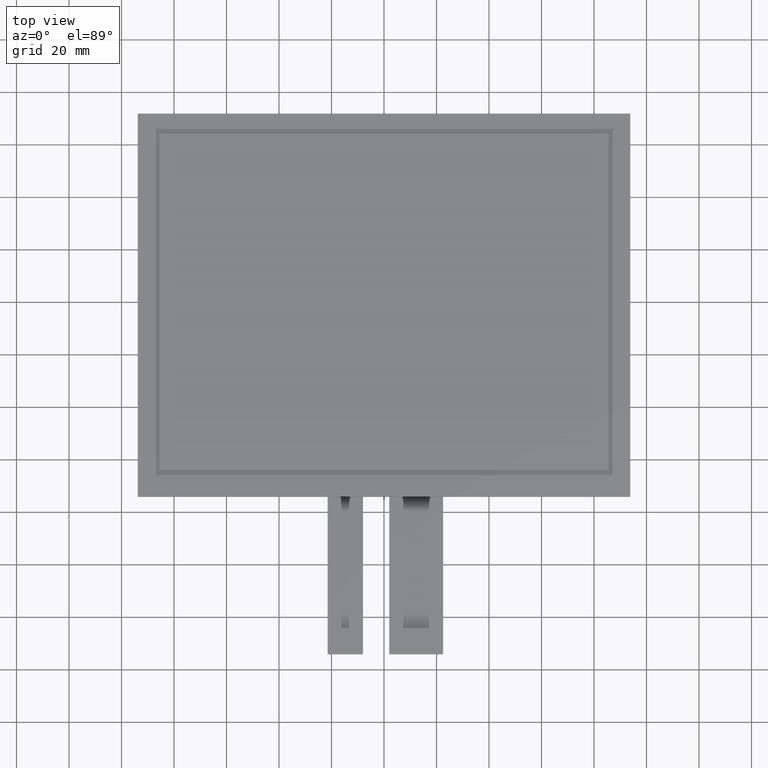
[diagram: clean part render]
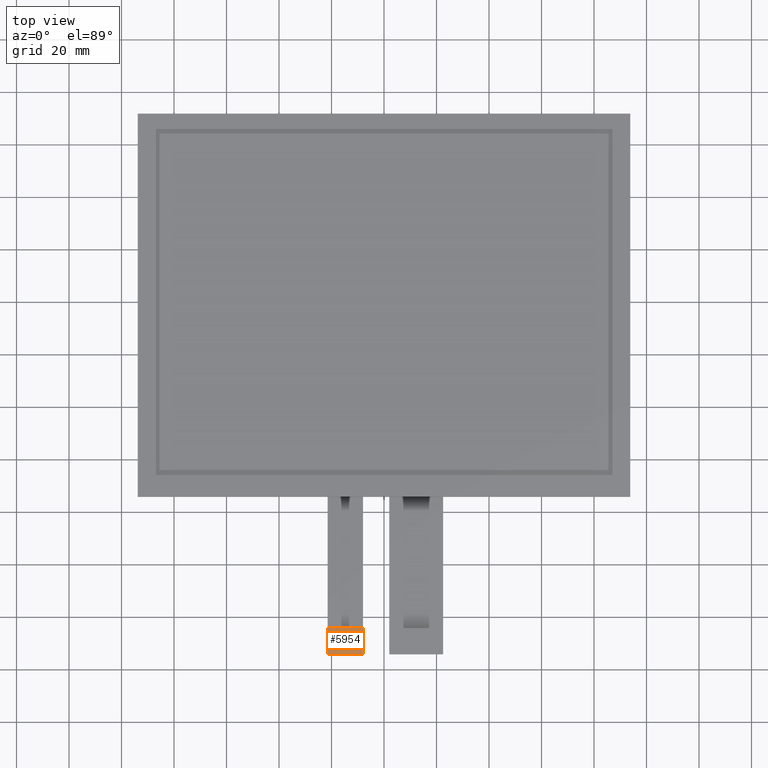
[diagram: same view with one face highlighted and labeled with its STEP entity id]
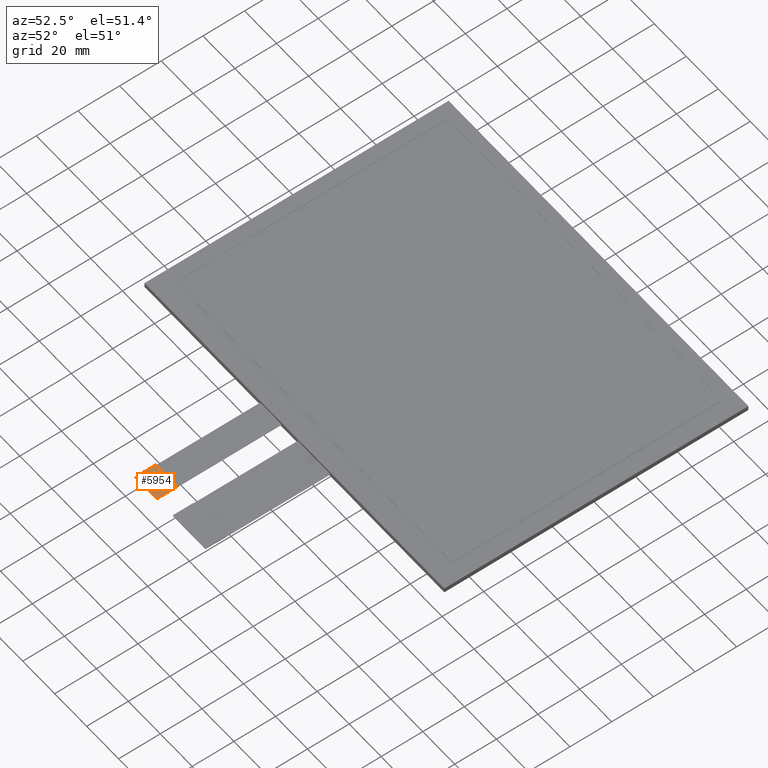
[diagram: same view with one face highlighted and labeled with its STEP entity id]
A machine part, top view. The second image highlights one B-rep face of the part: STEP entity #5954.
A second angle (auxiliary view) of the same face is appended — the face is thin or edge-on in the first view.
In plain terms, the highlighted planar face has unit normal (0, 0, 1).
Its self-contained STEP definition (entity closure, byte-faithful):
#19=PLANE('',#6278);
#318=FACE_OUTER_BOUND('',#620,.T.);
#620=EDGE_LOOP('',(#4177,#4178,#4179,#4180,#4181,#4182));
#927=LINE('',#8099,#1807);
#928=LINE('',#8103,#1808);
#929=LINE('',#8105,#1809);
#930=LINE('',#8106,#1810);
#1807=VECTOR('',#6597,10.);
#1808=VECTOR('',#6600,10.);
#1809=VECTOR('',#6601,10.);
#1810=VECTOR('',#6602,10.);
#2685=CIRCLE('',#6276,0.2);
#2687=CIRCLE('',#6279,0.2);
#2693=VERTEX_POINT('',#8089);
#2694=VERTEX_POINT('',#8090);
#2697=VERTEX_POINT('',#8098);
#2698=VERTEX_POINT('',#8100);
#2699=VERTEX_POINT('',#8102);
#2700=VERTEX_POINT('',#8104);
#3285=EDGE_CURVE('',#2693,#2694,#2685,.T.);
#3289=EDGE_CURVE('',#2693,#2697,#927,.T.);
#3290=EDGE_CURVE('',#2698,#2697,#2687,.T.);
#3291=EDGE_CURVE('',#2698,#2699,#928,.T.);
#3292=EDGE_CURVE('',#2699,#2700,#929,.T.);
#3293=EDGE_CURVE('',#2700,#2694,#930,.T.);
#4177=ORIENTED_EDGE('',*,*,#3285,.F.);
#4178=ORIENTED_EDGE('',*,*,#3289,.T.);
#4179=ORIENTED_EDGE('',*,*,#3290,.F.);
#4180=ORIENTED_EDGE('',*,*,#3291,.T.);
#4181=ORIENTED_EDGE('',*,*,#3292,.T.);
#4182=ORIENTED_EDGE('',*,*,#3293,.T.);
#5954=ADVANCED_FACE('',(#318),#19,.T.);
#6276=AXIS2_PLACEMENT_3D('',#8091,#6589,#6590);
#6278=AXIS2_PLACEMENT_3D('',#8097,#6595,#6596);
#6279=AXIS2_PLACEMENT_3D('',#8101,#6598,#6599);
#6589=DIRECTION('center_axis',(0.,0.,-1.));
#6590=DIRECTION('ref_axis',(-0.707106781186563,-0.707106781186532,0.));
#6595=DIRECTION('center_axis',(0.,0.,1.));
#6596=DIRECTION('ref_axis',(1.,0.,0.));
#6597=DIRECTION('',(1.,0.,0.));
#6598=DIRECTION('center_axis',(0.,0.,-1.));
#6599=DIRECTION('ref_axis',(0.707106781186555,-0.70710678118654,0.));
#6600=DIRECTION('',(-2.22044604925031E-16,1.,0.));
#6601=DIRECTION('',(-1.,0.,0.));
#6602=DIRECTION('',(6.66133814775094E-16,-1.,0.));
#8089=CARTESIAN_POINT('',(-21.28,-134.18,-0.8));
#8090=CARTESIAN_POINT('',(-21.48,-133.98,-0.8));
#8091=CARTESIAN_POINT('Origin',(-21.28,-133.98,-0.8));
#8097=CARTESIAN_POINT('Origin',(-14.73,-129.18,-0.8));
#8098=CARTESIAN_POINT('',(-8.17999999999999,-134.18,-0.8));
#8099=CARTESIAN_POINT('',(-7.97999999999997,-134.18,-0.8));
#8100=CARTESIAN_POINT('',(-7.97999999999999,-133.98,-0.8));
#8101=CARTESIAN_POINT('Origin',(-8.17999999999999,-133.98,-0.8));
#8102=CARTESIAN_POINT('',(-7.97999999999997,-124.18,-0.8));
#8103=CARTESIAN_POINT('',(-7.98,-74.18,-0.8));
#8104=CARTESIAN_POINT('',(-21.4799999999999,-124.18,-0.8));
#8105=CARTESIAN_POINT('',(-21.4799999999999,-124.18,-0.8));
#8106=CARTESIAN_POINT('',(-21.48,-134.18,-0.8));